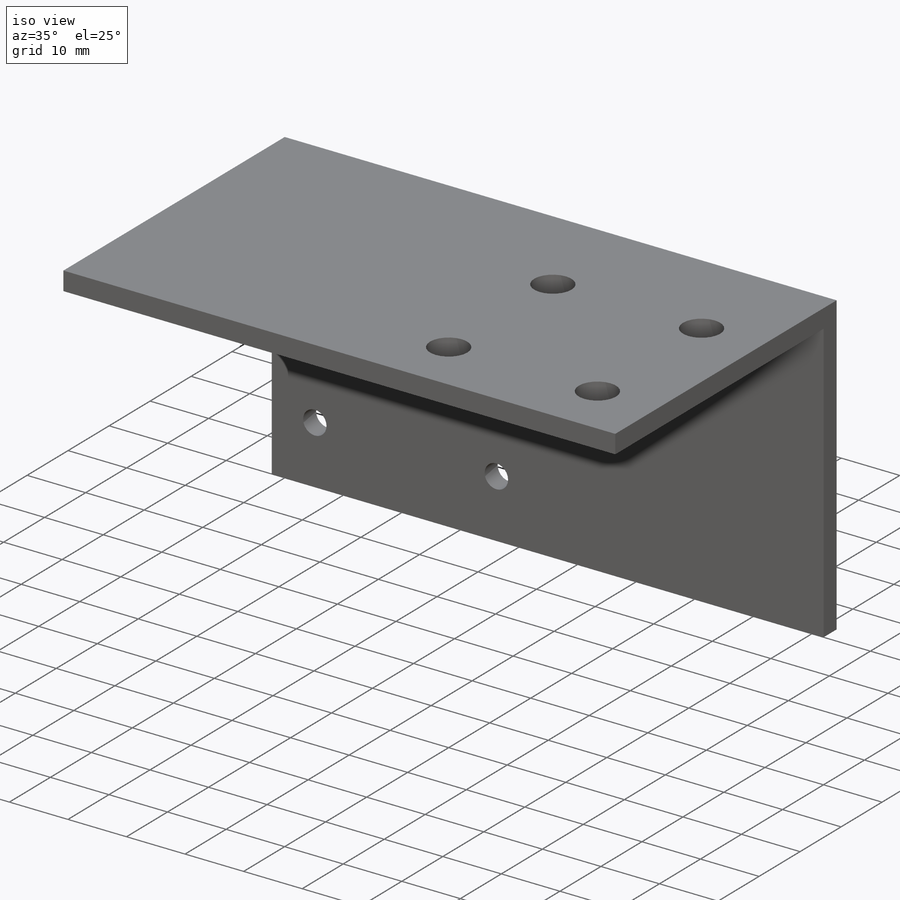
[diagram: iso view]
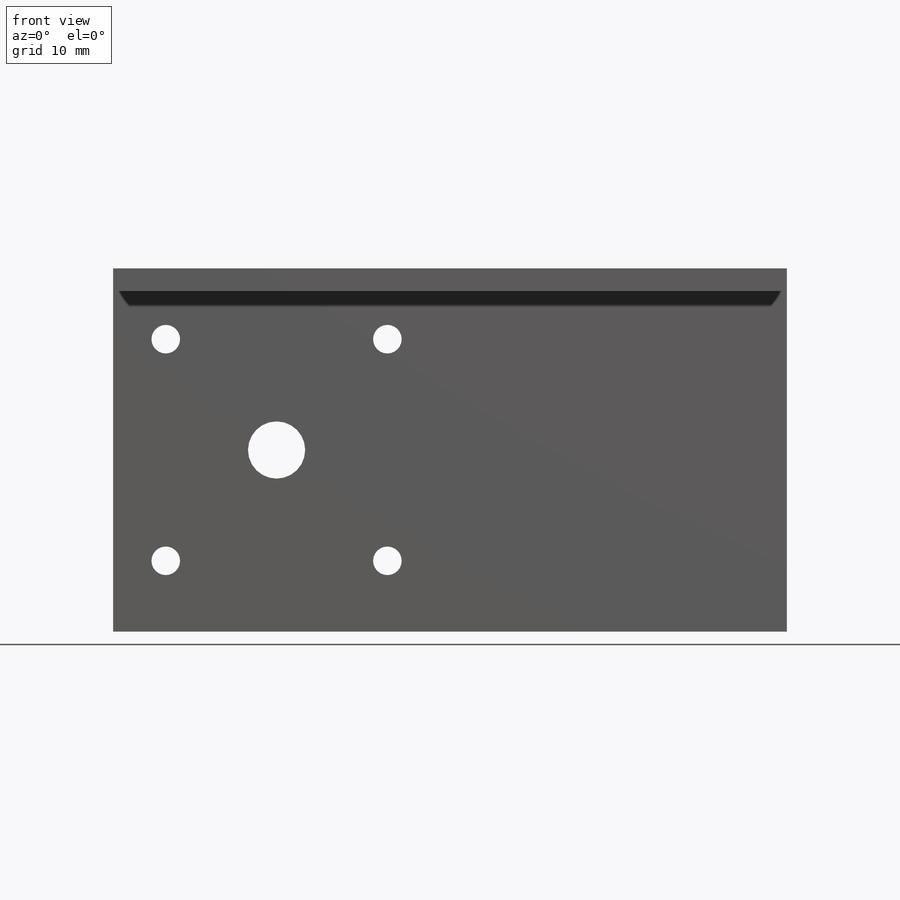
[diagram: front view]
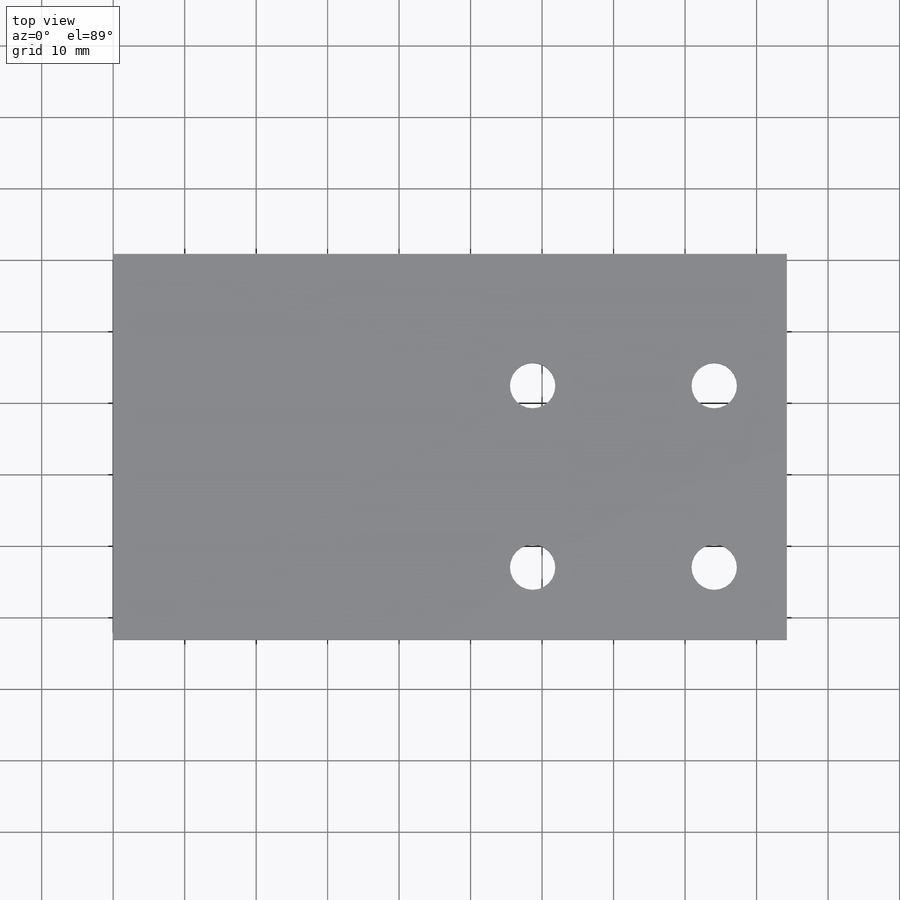
[diagram: top view]
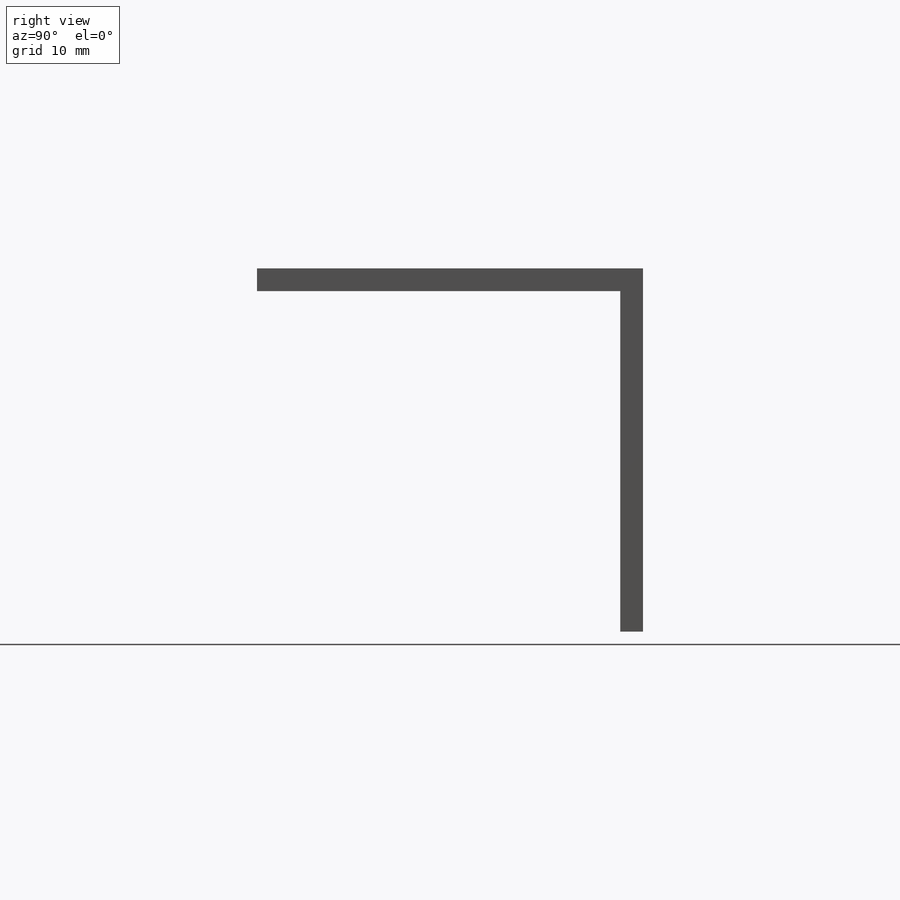
[diagram: right view]
SOLIDWORKS PART (.sldprt)
format: sldprt  version: not decoded by parser v0  size: 208,384 bytes
history: native  units: mm
features: sketch x3, extrude x2, material x1, cut_extrude x1 (+13 scaffold rows collapsed)
feature tree (20):
  scaffold x13  (default folders/planes/origin — collapsed)
  material  "Material <not specified>"
  sketch  "Sketch1"  dims[c1.D3=8.0mm c1.D4=37.0mm c1.D7=3.0mm c1.D10=31.0mm c1.D12=~5.043203mm c1.D15=6.35mm c1.D8=31.0mm c1.D5=4.0mm c2.D8=4.0mm c2.D11=4.0mm c2.D13=4.0mm c2.D1=94.234mm c2.D2=50.8mm c2.D5=7.0mm c2.D6=31.75mm c3.D8=76.2mm c4.D8=60.0deg c4.D9=~74.583204mm c5.D9=60.0deg c5.D11=31.2mm c5.D12=9.525mm c5.D13=31.1912mm c5.D14=9.525mm c5.D2=50.8mm c6.D11=12.7mm c6.D12=15.875mm c6.D13=6.35mm c6.D14=6.35mm c6.D9=22.86mm c6.D4=25.4mm c6.D6=15.5mm c6.D7=15.5mm c6.D10=15.5mm c7.D12=15.5mm c7.D14=15.5mm c7.D15=15.5mm]
  extrude  "Boss-Extrude1"  Depth=3.175mm
  sketch  "Sketch2"  dims[D1=3.175mm]
  extrude  "Boss-Extrude2"  Depth=50.8mm
  sketch  "Sketch3"  dims[D1=6.35mm D5=6.35mm D6=6.35mm D2=25.4mm D3=10.16mm D4=10.16mm D7=25.4mm D8=25.4mm D9=25.4mm D10=35.56mm]
  cut_extrude  "Cut-Extrude1"  [1 undecoded]
decode coverage: 5 of 6 modeling features carry decoded parameters
note: ~ marks probable driven/reference dimensions
note: 1 parameter value undecoded
note: suppression state not decoded; provenance and decode notes live in map.json
